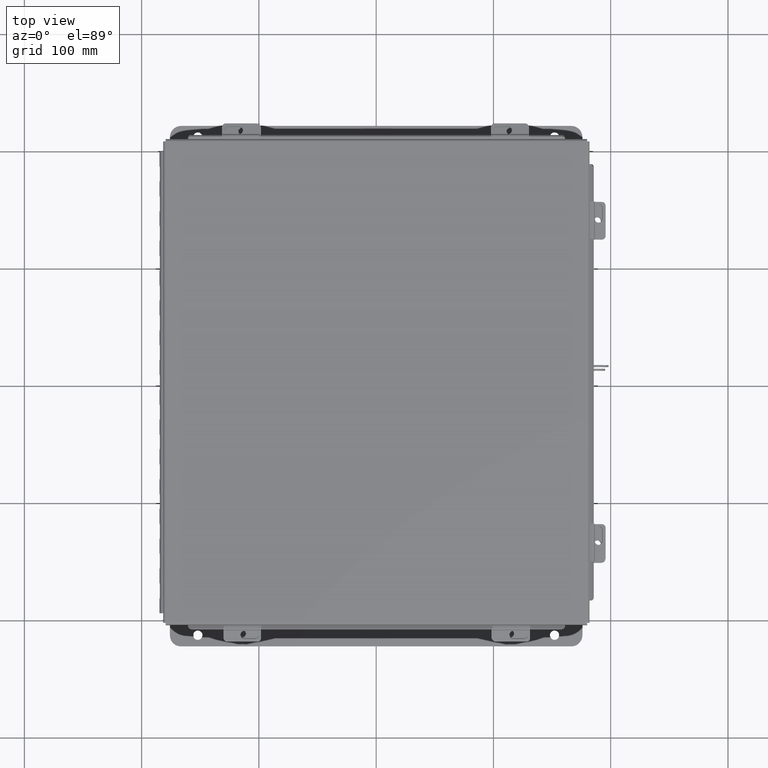
[diagram: clean part render]
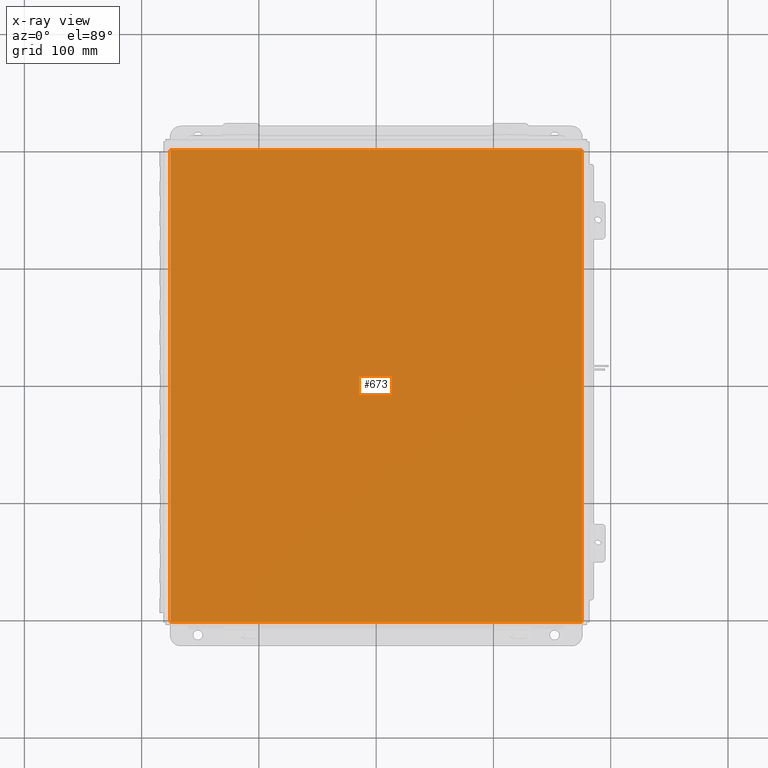
[diagram: x-ray — body ghosted, one internal face saturated and labeled with its STEP entity id]
A machine part, top view, then the same camera in x-ray: the body is ghosted and one INTERNAL B-rep face — a face not visible from any outside direction — is saturated and labeled: STEP entity #673.
In plain terms, the highlighted planar face has unit normal (0, 0, -1).
Its self-contained STEP definition (entity closure, byte-faithful):
#365 = CARTESIAN_POINT ( 'NONE',  ( -6.912299999999999200, 7.925300000000000900, 4.268512490100411300E-017 ) ) ;
#673 = ADVANCED_FACE ( 'NONE', ( #17489 ), #5352, .F. ) ;
#705 = CARTESIAN_POINT ( 'NONE',  ( 6.912299999999999200, 7.925300000000000000, 4.268512490100411300E-017 ) ) ;
#1164 = VERTEX_POINT ( 'NONE', #705 ) ;
#1468 = VERTEX_POINT ( 'NONE', #4734 ) ;
#1560 = CARTESIAN_POINT ( 'NONE',  ( -7.000000000000000000, -7.925299999999997300, 0.0000000000000000000 ) ) ;
#1887 = VECTOR ( 'NONE', #9118, 39.37007874015748100 ) ;
#2035 = VERTEX_POINT ( 'NONE', #5460 ) ;
#2138 = EDGE_CURVE ( 'NONE', #1468, #2035, #2365, .T. ) ;
#2365 = LINE ( 'NONE', #1560, #1887 ) ;
#2983 = CARTESIAN_POINT ( 'NONE',  ( 6.912299999999999200, 7.925300000000001800, 4.268512490100411300E-017 ) ) ;
#3316 = LINE ( 'NONE', #2983, #18854 ) ;
#3573 = LINE ( 'NONE', #6931, #15475 ) ;
#3808 = DIRECTION ( 'NONE',  ( -1.000000000000000000, -0.0000000000000000000, -0.0000000000000000000 ) ) ;
#4734 = CARTESIAN_POINT ( 'NONE',  ( -6.912299999999999200, -7.925299999999997300, 4.268512490100411300E-017 ) ) ;
#5352 = PLANE ( 'NONE',  #16654 ) ;
#5460 = CARTESIAN_POINT ( 'NONE',  ( 6.912299999999999200, -7.925299999999997300, 4.268512490100411300E-017 ) ) ;
#6187 = CARTESIAN_POINT ( 'NONE',  ( -6.912299999999999200, -7.925299999999998200, 4.268512490100411300E-017 ) ) ;
#6931 = CARTESIAN_POINT ( 'NONE',  ( -7.000000000000000000, 7.925300000000000900, 0.0000000000000000000 ) ) ;
#7037 = DIRECTION ( 'NONE',  ( 0.0000000000000000000, 0.0000000000000000000, -1.000000000000000000 ) ) ;
#7405 = VERTEX_POINT ( 'NONE', #365 ) ;
#7839 = EDGE_CURVE ( 'NONE', #1468, #7405, #18028, .T. ) ;
#9118 = DIRECTION ( 'NONE',  ( 1.000000000000000000, 0.0000000000000000000, 0.0000000000000000000 ) ) ;
#9173 = DIRECTION ( 'NONE',  ( -0.0000000000000000000, -1.000000000000000000, -0.0000000000000000000 ) ) ;
#9317 = VECTOR ( 'NONE', #15470, 39.37007874015748100 ) ;
#11173 = ORIENTED_EDGE ( 'NONE', *, *, #2138, .T. ) ;
#13024 = ORIENTED_EDGE ( 'NONE', *, *, #13507, .F. ) ;
#13222 = EDGE_CURVE ( 'NONE', #1164, #7405, #3573, .T. ) ;
#13507 = EDGE_CURVE ( 'NONE', #1164, #2035, #3316, .T. ) ;
#13937 = CARTESIAN_POINT ( 'NONE',  ( 0.0000000000000000000, 0.0000000000000000000, 0.0000000000000000000 ) ) ;
#15131 = ORIENTED_EDGE ( 'NONE', *, *, #13222, .T. ) ;
#15470 = DIRECTION ( 'NONE',  ( -0.0000000000000000000, 1.000000000000000000, -0.0000000000000000000 ) ) ;
#15475 = VECTOR ( 'NONE', #3808, 39.37007874015748100 ) ;
#16654 = AXIS2_PLACEMENT_3D ( 'NONE', #13937, #7037, #17833 ) ;
#17489 = FACE_OUTER_BOUND ( 'NONE', #19453, .T. ) ;
#17833 = DIRECTION ( 'NONE',  ( -1.000000000000000000, 0.0000000000000000000, -0.0000000000000000000 ) ) ;
#18028 = LINE ( 'NONE', #6187, #9317 ) ;
#18854 = VECTOR ( 'NONE', #9173, 39.37007874015748100 ) ;
#19453 = EDGE_LOOP ( 'NONE', ( #13024, #15131, #19781, #11173 ) ) ;
#19781 = ORIENTED_EDGE ( 'NONE', *, *, #7839, .F. ) ;